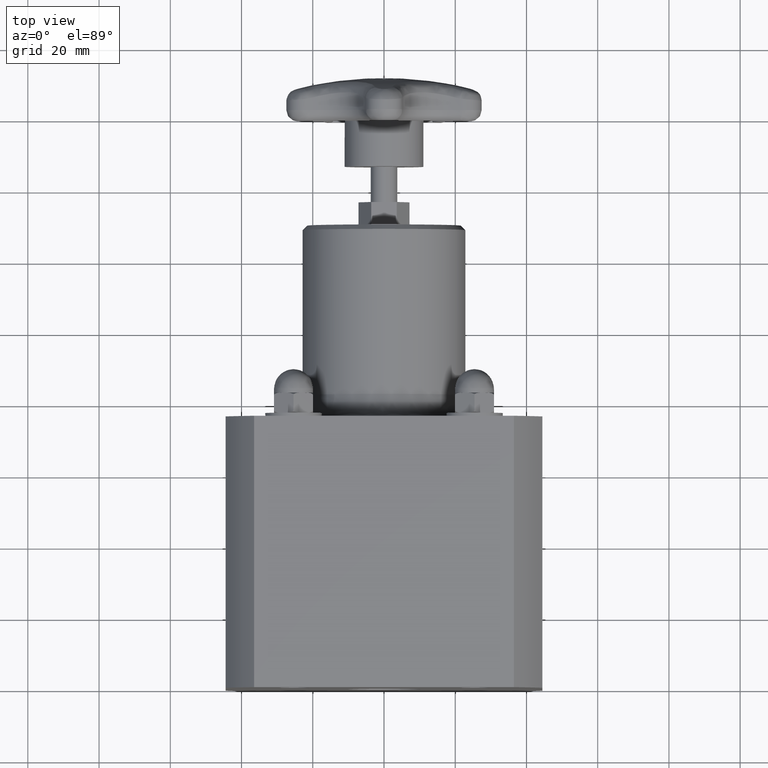
[diagram: clean part render]
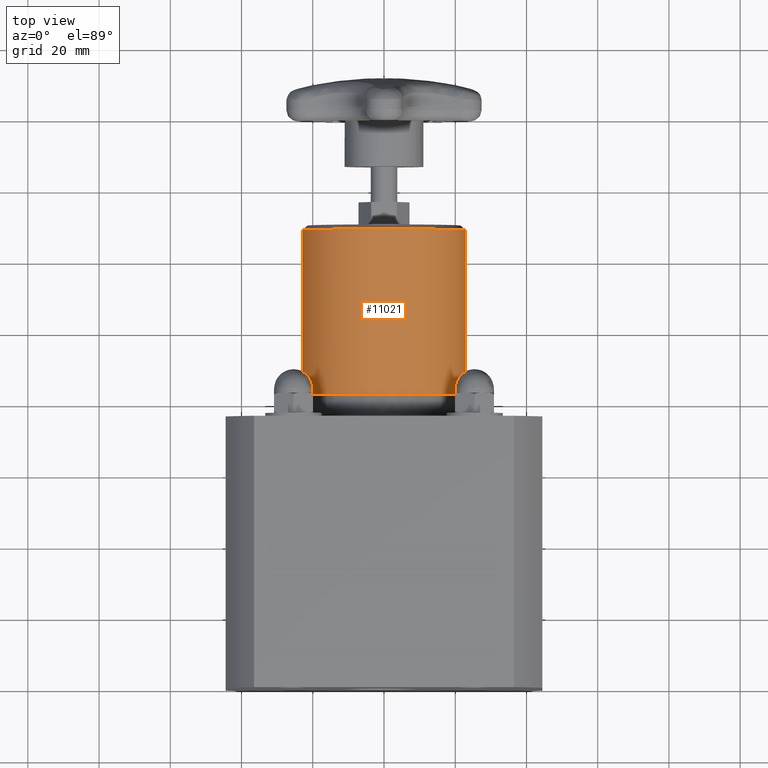
[diagram: same view with one face highlighted and labeled with its STEP entity id]
A machine part, top view. The second image highlights one B-rep face of the part: STEP entity #11021.
In plain terms, the highlighted cylindrical surface (bore or boss wall) has radius 22.86 mm, axis along (0, -1, -0).
Its self-contained STEP definition (entity closure, byte-faithful):
#8510=CARTESIAN_POINT('',(0.899999999999999,3.250000000000001,-3.566161E-016));
#8511=VERTEX_POINT('',#8510);
#8512=CARTESIAN_POINT('',(-1.268648E-015,3.250000000000000,-5.510831E-017));
#8513=DIRECTION('',(0.0,-1.0,0.0));
#8514=DIRECTION('',(1.0,0.0,0.0));
#8515=AXIS2_PLACEMENT_3D('',#8512,#8513,#8514);
#8516=CIRCLE('',#8515,0.900000000000000);
#8517=EDGE_CURVE('',#8511,#8511,#8516,.T.);
#10995=CARTESIAN_POINT('',(0.899999999999997,5.075000000000001,-3.566161E-016));
#10996=VERTEX_POINT('',#10995);
#10997=CARTESIAN_POINT('',(-2.482714E-015,5.075000000000000,-5.510831E-017));
#10998=DIRECTION('',(0.0,-1.0,0.0));
#10999=DIRECTION('',(1.0,0.0,0.0));
#11000=AXIS2_PLACEMENT_3D('',#10997,#10998,#10999);
#11001=CIRCLE('',#11000,0.900000000000000);
#11002=EDGE_CURVE('',#10996,#10996,#11001,.T.);
#11010=CARTESIAN_POINT('',(-1.875681E-015,4.162500000000000,-5.510831E-017));
#11011=DIRECTION('',(6.652417E-016,-1.0,-6.550184E-032));
#11012=DIRECTION('',(1.0,0.0,0.0));
#11013=AXIS2_PLACEMENT_3D('',#11010,#11011,#11012);
#11014=CYLINDRICAL_SURFACE('',#11013,0.900000000000000);
#11015=ORIENTED_EDGE('',*,*,#8517,.F.);
#11016=EDGE_LOOP('',(#11015));
#11017=FACE_OUTER_BOUND('',#11016,.T.);
#11018=ORIENTED_EDGE('',*,*,#11002,.T.);
#11019=EDGE_LOOP('',(#11018));
#11020=FACE_BOUND('',#11019,.T.);
#11021=ADVANCED_FACE('',(#11017,#11020),#11014,.T.);